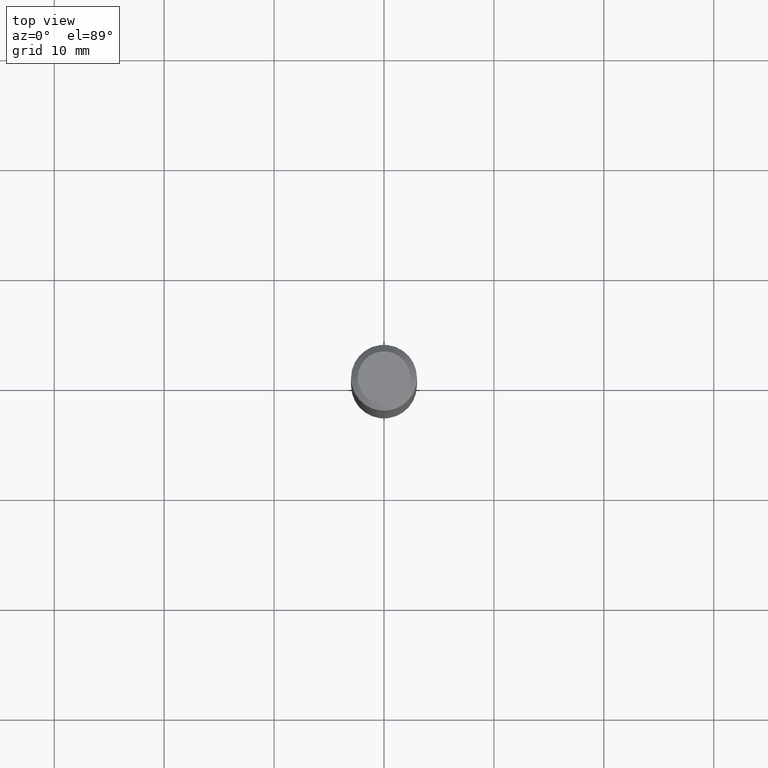
[diagram: clean part render]
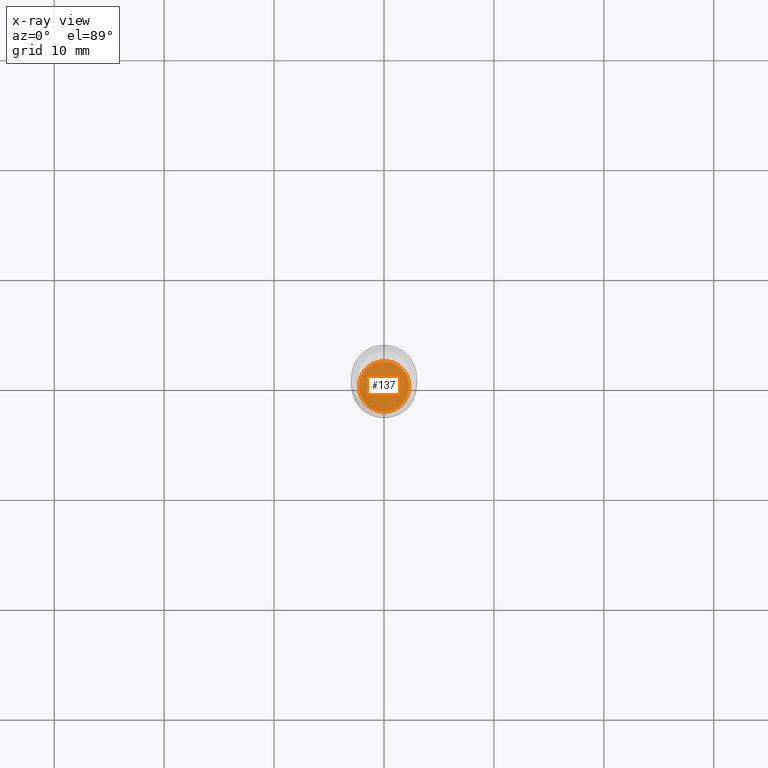
[diagram: x-ray — body ghosted, one internal face saturated and labeled with its STEP entity id]
A machine part, top view, then the same camera in x-ray: the body is ghosted and one INTERNAL B-rep face — a face not visible from any outside direction — is saturated and labeled: STEP entity #137.
In plain terms, the highlighted planar face has unit normal (-0, 0, 1).
Its self-contained STEP definition (entity closure, byte-faithful):
#12 = CARTESIAN_POINT ( 'NONE',  ( 4.486457071827251481E-29, -6.405471664241634119E-15, -1.834599999999999786 ) ) ;
#21 = CIRCLE ( 'NONE', #84, 0.09005000000000000504 ) ;
#45 = DIRECTION ( 'NONE',  ( -2.445468806185136597E-29, 3.491481338843145583E-15, 1.000000000000000000 ) ) ;
#50 = CARTESIAN_POINT ( 'NONE',  ( 4.486457071827251481E-29, -6.405471664241634119E-15, -1.834599999999999786 ) ) ;
#64 = CARTESIAN_POINT ( 'NONE',  ( 4.486457071827251481E-29, -6.405471664241634119E-15, -1.834599999999999786 ) ) ;
#80 = VERTEX_POINT ( 'NONE', #324 ) ;
#84 = AXIS2_PLACEMENT_3D ( 'NONE', #50, #45, #148 ) ;
#92 = DIRECTION ( 'NONE',  ( -2.445468806185136597E-29, 3.491481338843145583E-15, 1.000000000000000000 ) ) ;
#137 = ADVANCED_FACE ( 'NONE', ( #390 ), #180, .F. ) ;
#148 = DIRECTION ( 'NONE',  ( 1.000000000000000000, -6.982962677686271444E-15, 0.000000000000000000 ) ) ;
#162 = EDGE_CURVE ( 'NONE', #80, #231, #21, .T. ) ;
#167 = AXIS2_PLACEMENT_3D ( 'NONE', #12, #92, #279 ) ;
#168 = AXIS2_PLACEMENT_3D ( 'NONE', #64, #218, #264 ) ;
#180 = PLANE ( 'NONE',  #168 ) ;
#218 = DIRECTION ( 'NONE',  ( -2.438088387897960049E-29, 3.491481338843145188E-15, 1.000000000000000000 ) ) ;
#231 = VERTEX_POINT ( 'NONE', #233 ) ;
#233 = CARTESIAN_POINT ( 'NONE',  ( -0.09005000000000000504, -5.762978703515552960E-15, -1.834599999999999786 ) ) ;
#258 = EDGE_CURVE ( 'NONE', #231, #80, #436, .T. ) ;
#264 = DIRECTION ( 'NONE',  ( 1.000000000000000000, -6.982962677686265922E-15, 4.876176775795935793E-29 ) ) ;
#279 = DIRECTION ( 'NONE',  ( 1.000000000000000000, -6.982962677686271444E-15, 0.000000000000000000 ) ) ;
#324 = CARTESIAN_POINT ( 'NONE',  ( 0.09005000000000000504, -7.034287453367283370E-15, -1.834599999999999786 ) ) ;
#330 = ORIENTED_EDGE ( 'NONE', *, *, #258, .F. ) ;
#333 = EDGE_LOOP ( 'NONE', ( #364, #330 ) ) ;
#364 = ORIENTED_EDGE ( 'NONE', *, *, #162, .F. ) ;
#390 = FACE_OUTER_BOUND ( 'NONE', #333, .T. ) ;
#436 = CIRCLE ( 'NONE', #167, 0.09005000000000000504 ) ;